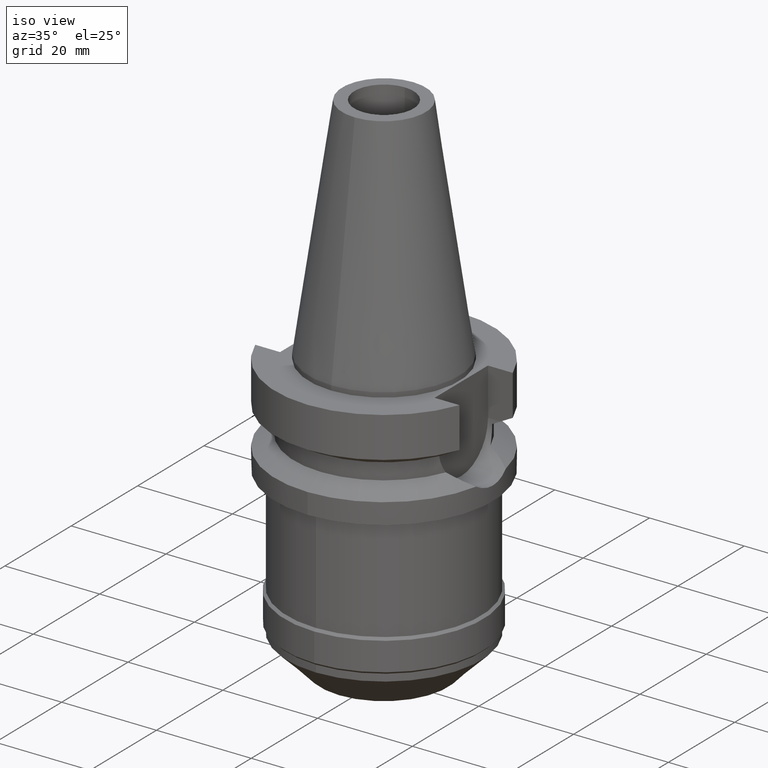
[diagram: clean part render]
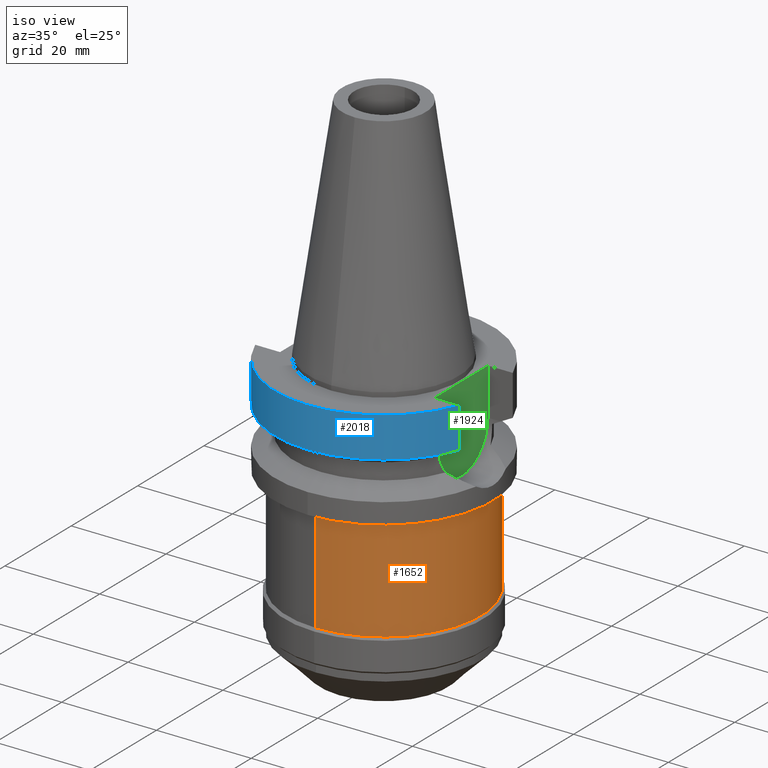
[diagram: same view with three faces highlighted in distinct colors, each labeled with its STEP entity id]
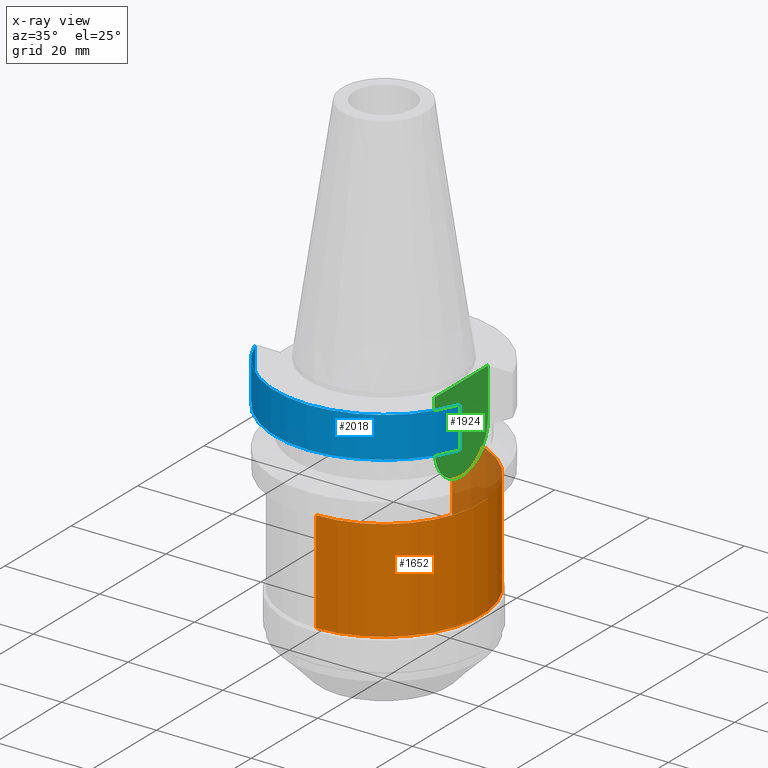
[diagram: x-ray of the same camera — body ghosted, the three highlighted faces saturated]
A machine part, iso view with three faces highlighted in distinct colors.
The next image is the same camera in x-ray (body ghosted, the three faces saturated) — at least one of them is partly hidden behind the body in this view.
Their STEP definitions:

[orange] entity #1652 — the highlighted cylindrical surface (partial cylindrical patch) has radius 20.5 mm, axis along (0, 0, -1).
#413=CARTESIAN_POINT('',(0.E0,0.E0,-4.45E1));
#414=DIRECTION('',(0.E0,0.E0,1.E0));
#415=DIRECTION('',(0.E0,-1.E0,0.E0));
#416=AXIS2_PLACEMENT_3D('',#413,#414,#415);
#444=DIRECTION('',(0.E0,0.E0,-1.E0));
#445=VECTOR('',#444,2.15E1);
#446=CARTESIAN_POINT('',(0.E0,-2.05E1,-2.3E1));
#447=LINE('',#446,#445);
#451=DIRECTION('',(0.E0,0.E0,-1.E0));
#452=VECTOR('',#451,2.15E1);
#453=CARTESIAN_POINT('',(0.E0,2.05E1,-2.3E1));
#454=LINE('',#453,#452);
#465=CARTESIAN_POINT('',(0.E0,0.E0,-2.3E1));
#466=DIRECTION('',(0.E0,0.E0,-1.E0));
#467=DIRECTION('',(0.E0,1.E0,0.E0));
#468=AXIS2_PLACEMENT_3D('',#465,#466,#467);
#1143=CARTESIAN_POINT('',(0.E0,2.05E1,-4.45E1));
#1144=VERTEX_POINT('',#1143);
#1145=CARTESIAN_POINT('',(0.E0,-2.05E1,-4.45E1));
#1146=VERTEX_POINT('',#1145);
#1147=CARTESIAN_POINT('',(0.E0,2.05E1,-2.3E1));
#1148=VERTEX_POINT('',#1147);
#1149=CARTESIAN_POINT('',(0.E0,-2.05E1,-2.3E1));
#1150=VERTEX_POINT('',#1149);
#1640=CARTESIAN_POINT('',(0.E0,1.883751706448E-14,5.382E1));
#1641=DIRECTION('',(0.E0,0.E0,-1.E0));
#1642=DIRECTION('',(0.E0,-1.E0,0.E0));
#1643=AXIS2_PLACEMENT_3D('',#1640,#1641,#1642);
#1644=CYLINDRICAL_SURFACE('',#1643,2.05E1);
#1645=ORIENTED_EDGE('',*,*,#1630,.T.);
#1646=ORIENTED_EDGE('',*,*,#1607,.F.);
#1647=ORIENTED_EDGE('',*,*,#1634,.F.);
#1649=ORIENTED_EDGE('',*,*,#1648,.F.);
#1650=EDGE_LOOP('',(#1645,#1646,#1647,#1649));
#1651=FACE_OUTER_BOUND('',#1650,.F.);
#417=CIRCLE('',#416,2.05E1);
#469=CIRCLE('',#468,2.05E1);
#1607=EDGE_CURVE('',#1146,#1144,#417,.T.);
#1630=EDGE_CURVE('',#1148,#1144,#454,.T.);
#1634=EDGE_CURVE('',#1150,#1146,#447,.T.);
#1648=EDGE_CURVE('',#1148,#1150,#469,.T.);
#1652=ADVANCED_FACE('',(#1651),#1644,.T.);

[blue] entity #2018 — the highlighted cylindrical surface (partial cylindrical patch) has radius 23 mm, axis along (0, 0, -1).
#890=CARTESIAN_POINT('',(0.E0,1.883751706448E-14,-1.E0));
#891=DIRECTION('',(0.E0,0.E0,-1.E0));
#892=DIRECTION('',(9.367496997598E-1,-3.5E-1,0.E0));
#893=AXIS2_PLACEMENT_3D('',#890,#891,#892);
#898=CARTESIAN_POINT('',(0.E0,1.883751706448E-14,-1.E0));
#899=DIRECTION('',(0.E0,0.E0,-1.E0));
#900=DIRECTION('',(0.E0,-1.E0,0.E0));
#901=AXIS2_PLACEMENT_3D('',#898,#899,#900);
#952=CARTESIAN_POINT('',(-2.154524325238E1,-8.049999577366E0,
-9.567211146629E0));
#969=CARTESIAN_POINT('',(0.E0,1.093341284897E-14,-9.567208369711E0));
#970=DIRECTION('',(0.E0,0.E0,1.E0));
#971=DIRECTION('',(-9.367496997597E-1,-3.500000000001E-1,0.E0));
#972=AXIS2_PLACEMENT_3D('',#969,#970,#971);
#977=CARTESIAN_POINT('',(0.E0,1.093341284897E-14,-9.567208369711E0));
#978=DIRECTION('',(0.E0,0.E0,1.E0));
#979=DIRECTION('',(0.E0,-1.E0,0.E0));
#980=AXIS2_PLACEMENT_3D('',#977,#978,#979);
#1021=DIRECTION('',(1.843189971013E-8,-4.933165888407E-8,1.E0));
#1022=VECTOR('',#1021,8.567211146629E0);
#1023=CARTESIAN_POINT('',(-2.154524325238E1,-8.049999577366E0,
-9.567211146629E0));
#1024=LINE('',#1023,#1022);
#1028=DIRECTION('',(-9.134802528421E-8,-2.444862515858E-7,-1.E0));
#1029=VECTOR('',#1028,8.567194606554E0);
#1030=CARTESIAN_POINT('',(2.154524309447E1,-8.05E0,-1.E0));
#1031=LINE('',#1030,#1029);
#1202=VERTEX_POINT('',#952);
#1203=CARTESIAN_POINT('',(0.E0,-2.3E1,-9.567208369711E0));
#1204=CARTESIAN_POINT('',(2.154524309447E1,-8.050000000001E0,
-9.567208369711E0));
#1205=VERTEX_POINT('',#1203);
#1206=VERTEX_POINT('',#1204);
#1213=CARTESIAN_POINT('',(-2.154524309447E1,-8.05E0,-1.E0));
#1214=VERTEX_POINT('',#1213);
#1227=CARTESIAN_POINT('',(2.154524309447E1,-8.05E0,-1.E0));
#1228=VERTEX_POINT('',#1227);
#1229=CARTESIAN_POINT('',(0.E0,-2.3E1,-1.E0));
#1230=VERTEX_POINT('',#1229);
#2004=CARTESIAN_POINT('',(0.E0,1.883751706448E-14,5.382E1));
#2005=DIRECTION('',(0.E0,0.E0,-1.E0));
#2006=DIRECTION('',(0.E0,-1.E0,0.E0));
#2007=AXIS2_PLACEMENT_3D('',#2004,#2005,#2006);
#2008=CYLINDRICAL_SURFACE('',#2007,2.3E1);
#2009=ORIENTED_EDGE('',*,*,#1978,.T.);
#2010=ORIENTED_EDGE('',*,*,#1941,.F.);
#2011=ORIENTED_EDGE('',*,*,#1939,.F.);
#2013=ORIENTED_EDGE('',*,*,#2012,.T.);
#2014=ORIENTED_EDGE('',*,*,#1991,.F.);
#2015=ORIENTED_EDGE('',*,*,#1989,.F.);
#2016=EDGE_LOOP('',(#2009,#2010,#2011,#2013,#2014,#2015));
#2017=FACE_OUTER_BOUND('',#2016,.F.);
#894=CIRCLE('',#893,2.3E1);
#902=CIRCLE('',#901,2.3E1);
#973=CIRCLE('',#972,2.3E1);
#981=CIRCLE('',#980,2.3E1);
#1939=EDGE_CURVE('',#1228,#1230,#894,.T.);
#1941=EDGE_CURVE('',#1230,#1214,#902,.T.);
#1978=EDGE_CURVE('',#1202,#1214,#1024,.T.);
#1989=EDGE_CURVE('',#1202,#1205,#973,.T.);
#1991=EDGE_CURVE('',#1205,#1206,#981,.T.);
#2012=EDGE_CURVE('',#1228,#1206,#1031,.T.);
#2018=ADVANCED_FACE('',(#2017),#2008,.T.);

[green] entity #1924 — the highlighted planar face has unit normal (1, 0, 0).
#816=DIRECTION('',(0.E0,0.E0,-1.E0));
#817=VECTOR('',#816,9.95E0);
#818=CARTESIAN_POINT('',(1.63E1,8.05E0,-1.E0));
#819=LINE('',#818,#817);
#823=CARTESIAN_POINT('',(1.63E1,0.E0,-1.095E1));
#824=DIRECTION('',(-1.E0,0.E0,0.E0));
#825=DIRECTION('',(0.E0,1.E0,0.E0));
#826=AXIS2_PLACEMENT_3D('',#823,#824,#825);
#831=CARTESIAN_POINT('',(1.63E1,0.E0,-1.095E1));
#832=DIRECTION('',(-1.E0,0.E0,0.E0));
#833=DIRECTION('',(0.E0,0.E0,-1.E0));
#834=AXIS2_PLACEMENT_3D('',#831,#832,#833);
#839=DIRECTION('',(0.E0,0.E0,1.E0));
#840=VECTOR('',#839,9.95E0);
#841=CARTESIAN_POINT('',(1.63E1,-8.05E0,-1.095E1));
#842=LINE('',#841,#840);
#876=DIRECTION('',(0.E0,-1.E0,0.E0));
#877=VECTOR('',#876,1.61E1);
#878=CARTESIAN_POINT('',(1.63E1,8.05E0,-1.E0));
#879=LINE('',#878,#877);
#1169=CARTESIAN_POINT('',(1.63E1,-8.05E0,-1.095E1));
#1170=VERTEX_POINT('',#1169);
#1171=CARTESIAN_POINT('',(1.63E1,0.E0,-1.9E1));
#1172=VERTEX_POINT('',#1171);
#1173=CARTESIAN_POINT('',(1.63E1,8.05E0,-1.095E1));
#1174=VERTEX_POINT('',#1173);
#1223=CARTESIAN_POINT('',(1.63E1,8.05E0,-1.E0));
#1224=VERTEX_POINT('',#1223);
#1225=CARTESIAN_POINT('',(1.63E1,-8.05E0,-1.E0));
#1226=VERTEX_POINT('',#1225);
#1910=CARTESIAN_POINT('',(1.63E1,0.E0,0.E0));
#1911=DIRECTION('',(1.E0,0.E0,0.E0));
#1912=DIRECTION('',(0.E0,0.E0,-1.E0));
#1913=AXIS2_PLACEMENT_3D('',#1910,#1911,#1912);
#1914=PLANE('',#1913);
#1916=ORIENTED_EDGE('',*,*,#1915,.F.);
#1917=ORIENTED_EDGE('',*,*,#1902,.T.);
#1918=ORIENTED_EDGE('',*,*,#1735,.T.);
#1919=ORIENTED_EDGE('',*,*,#1733,.T.);
#1921=ORIENTED_EDGE('',*,*,#1920,.T.);
#1922=EDGE_LOOP('',(#1916,#1917,#1918,#1919,#1921));
#1923=FACE_OUTER_BOUND('',#1922,.F.);
#827=CIRCLE('',#826,8.05E0);
#835=CIRCLE('',#834,8.05E0);
#1733=EDGE_CURVE('',#1172,#1170,#835,.T.);
#1735=EDGE_CURVE('',#1174,#1172,#827,.T.);
#1902=EDGE_CURVE('',#1224,#1174,#819,.T.);
#1915=EDGE_CURVE('',#1224,#1226,#879,.T.);
#1920=EDGE_CURVE('',#1170,#1226,#842,.T.);
#1924=ADVANCED_FACE('',(#1923),#1914,.T.);